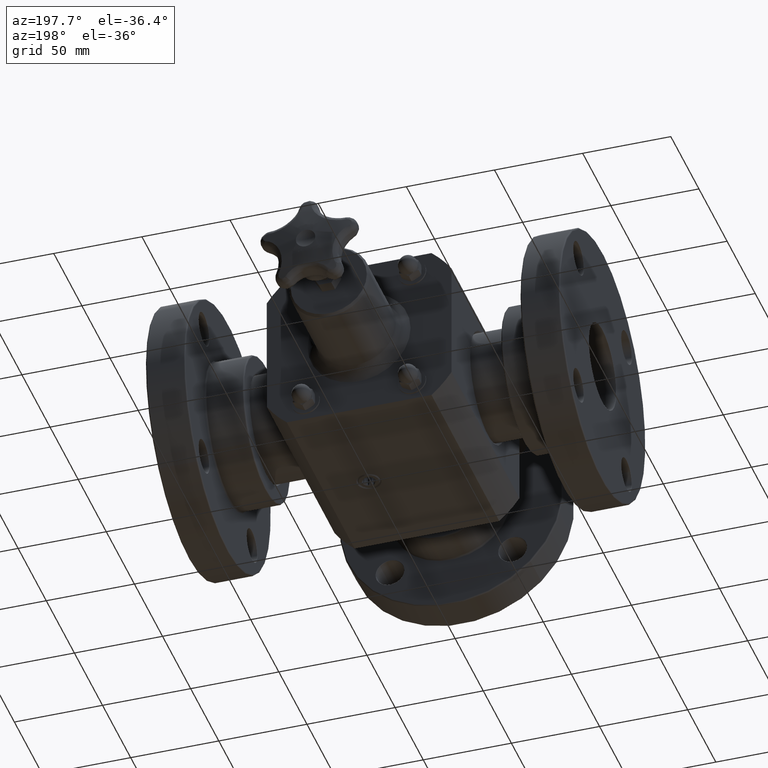
[diagram: clean part render]
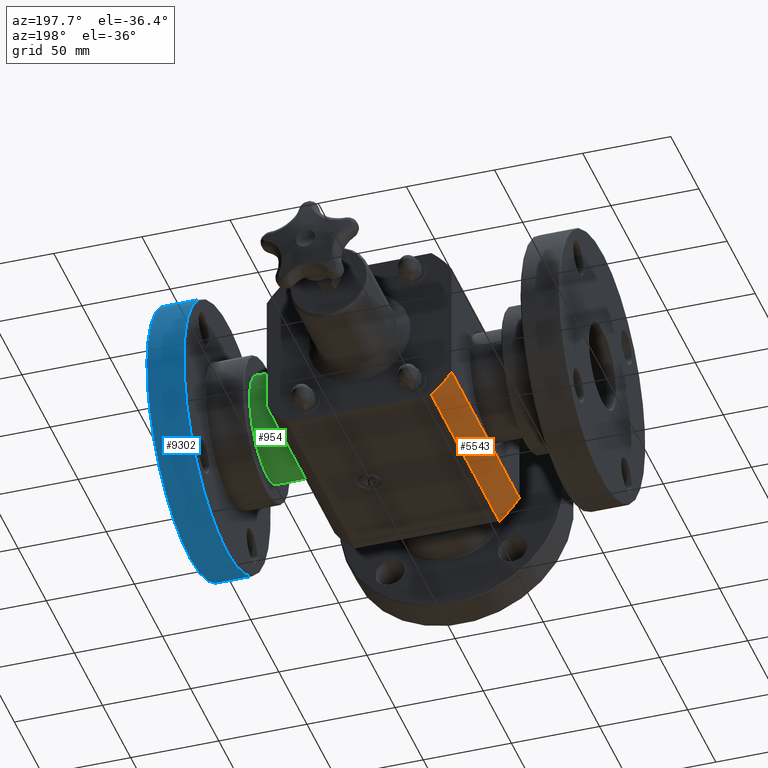
[diagram: same view with three faces highlighted in distinct colors, each labeled with its STEP entity id]
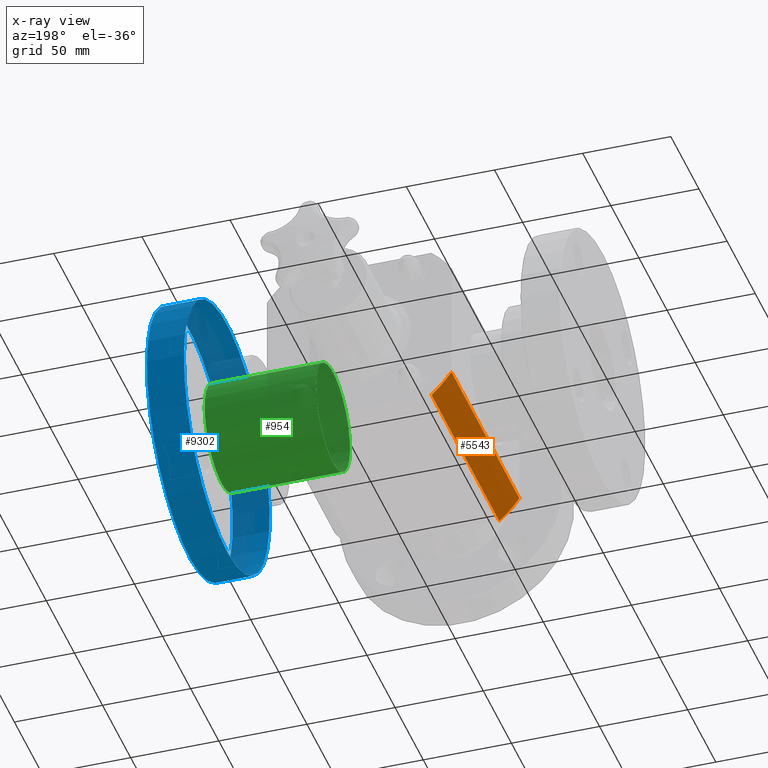
[diagram: x-ray of the same camera — body ghosted, the three highlighted faces saturated]
A machine part, auxiliary view with three faces highlighted in distinct colors.
The next image is the same camera in x-ray (body ghosted, the three faces saturated) — at least one of them is partly hidden behind the body in this view.
Their STEP definitions:

[orange] entity #5543 — the highlighted cylindrical surface (partial cylindrical patch) has radius 62.865 mm, axis along (-0, 1, 0).
#5028=CARTESIAN_POINT('',(-2.062500000000000,-6.381291E-016,-1.368107726021602));
#5029=VERTEX_POINT('',#5028);
#5036=CARTESIAN_POINT('',(-1.615549442140352,-2.694841E-016,-1.875000000000000));
#5037=VERTEX_POINT('',#5036);
#5038=CARTESIAN_POINT('',(0.0,0.0,0.0));
#5039=DIRECTION('',(0.0,1.0,0.0));
#5040=DIRECTION('',(1.0,0.0,0.0));
#5041=AXIS2_PLACEMENT_3D('',#5038,#5039,#5040);
#5042=CIRCLE('',#5041,2.475000000000000);
#5043=EDGE_CURVE('',#5037,#5029,#5042,.T.);
#5226=CARTESIAN_POINT('',(-1.615549442140356,4.749999999999999,-1.875000000000000));
#5227=VERTEX_POINT('',#5226);
#5228=CARTESIAN_POINT('',(-1.615549442140352,-2.694841E-016,-1.875000000000000));
#5229=DIRECTION('',(0.0,1.0,0.0));
#5230=VECTOR('',#5229,4.749999999999999);
#5231=LINE('',#5228,#5230);
#5232=EDGE_CURVE('',#5037,#5227,#5231,.T.);
#5291=CARTESIAN_POINT('',(-2.062500000000005,4.749999999999999,-1.368107726021602));
#5292=VERTEX_POINT('',#5291);
#5293=CARTESIAN_POINT('',(-2.062500000000000,-6.381291E-016,-1.368107726021602));
#5294=DIRECTION('',(0.0,1.0,0.0));
#5295=VECTOR('',#5294,4.750000000000000);
#5296=LINE('',#5293,#5295);
#5297=EDGE_CURVE('',#5029,#5292,#5296,.T.);
#5526=CARTESIAN_POINT('',(0.0,0.0,0.0));
#5527=DIRECTION('',(-4.996004E-016,1.0,2.867440E-016));
#5528=DIRECTION('',(1.0,0.0,0.0));
#5529=AXIS2_PLACEMENT_3D('',#5526,#5527,#5528);
#5530=CYLINDRICAL_SURFACE('',#5529,2.475000000000000);
#5531=ORIENTED_EDGE('',*,*,#5232,.F.);
#5532=ORIENTED_EDGE('',*,*,#5043,.T.);
#5533=ORIENTED_EDGE('',*,*,#5297,.T.);
#5534=CARTESIAN_POINT('',(-4.035678E-015,4.750000000000001,-2.622574E-016));
#5535=DIRECTION('',(0.0,-1.0,0.0));
#5536=DIRECTION('',(1.0,0.0,0.0));
#5537=AXIS2_PLACEMENT_3D('',#5534,#5535,#5536);
#5538=CIRCLE('',#5537,2.475000000000000);
#5539=EDGE_CURVE('',#5292,#5227,#5538,.T.);
#5540=ORIENTED_EDGE('',*,*,#5539,.T.);
#5541=EDGE_LOOP('',(#5531,#5532,#5533,#5540));
#5542=FACE_OUTER_BOUND('',#5541,.T.);
#5543=ADVANCED_FACE('',(#5542),#5530,.T.);

[blue] entity #9302 — the highlighted cylindrical surface (bore or boss wall) has radius 76.2 mm, axis along (-1, -0, -0).
#9268=CARTESIAN_POINT('',(3.769999999999999,4.319320343559645,-2.121320343559640));
#9269=VERTEX_POINT('',#9268);
#9270=CARTESIAN_POINT('',(3.770000000000000,2.198000000000001,1.028519E-015));
#9271=DIRECTION('',(-1.0,-9.300431E-017,9.300431E-017));
#9272=DIRECTION('',(1.315280E-016,-0.707106781186548,0.707106781186547));
#9273=AXIS2_PLACEMENT_3D('',#9270,#9271,#9272);
#9274=CIRCLE('',#9273,3.0);
#9275=EDGE_CURVE('',#9269,#9269,#9274,.T.);
#9283=CARTESIAN_POINT('',(4.182499999999999,2.198000000000001,1.079036E-015));
#9284=DIRECTION('',(-1.0,-3.084733E-016,-1.224647E-016));
#9285=DIRECTION('',(-1.315280E-016,0.707106781186548,-0.707106781186547));
#9286=AXIS2_PLACEMENT_3D('',#9283,#9284,#9285);
#9287=CYLINDRICAL_SURFACE('',#9286,3.0);
#9288=CARTESIAN_POINT('',(4.594999999999999,4.319320343559645,-2.121320343559640));
#9289=VERTEX_POINT('',#9288);
#9290=CARTESIAN_POINT('',(4.595000000000000,2.198000000000001,1.129552E-015));
#9291=DIRECTION('',(1.0,9.300431E-017,-9.300431E-017));
#9292=DIRECTION('',(1.315280E-016,-0.707106781186548,0.707106781186547));
#9293=AXIS2_PLACEMENT_3D('',#9290,#9291,#9292);
#9294=CIRCLE('',#9293,3.0);
#9295=EDGE_CURVE('',#9289,#9289,#9294,.T.);
#9296=ORIENTED_EDGE('',*,*,#9295,.F.);
#9297=EDGE_LOOP('',(#9296));
#9298=FACE_OUTER_BOUND('',#9297,.T.);
#9299=ORIENTED_EDGE('',*,*,#9275,.F.);
#9300=EDGE_LOOP('',(#9299));
#9301=FACE_BOUND('',#9300,.T.);
#9302=ADVANCED_FACE('',(#9298,#9301),#9287,.T.);

[green] entity #954 — the highlighted cylindrical surface (bore or boss wall) has radius 30.1625 mm, axis along (-1, -0, -0).
#927=CARTESIAN_POINT('',(2.145000000000000,2.198000000000000,8.295137E-016));
#928=DIRECTION('',(-1.0,-3.084733E-016,-1.224647E-016));
#929=DIRECTION('',(-1.406678E-016,0.059718865235483,0.998215235876004));
#930=AXIS2_PLACEMENT_3D('',#927,#928,#929);
#931=CYLINDRICAL_SURFACE('',#930,1.187500000000000);
#932=CARTESIAN_POINT('',(3.886666666666697,2.127083847532865,-1.185380592602754));
#933=VERTEX_POINT('',#932);
#934=CARTESIAN_POINT('',(3.886666666666697,2.198000000000001,1.042806E-015));
#935=DIRECTION('',(1.0,8.400520E-018,1.404167E-016));
#936=DIRECTION('',(-1.406678E-016,0.059718865235483,0.998215235876004));
#937=AXIS2_PLACEMENT_3D('',#934,#935,#936);
#938=CIRCLE('',#937,1.187500000000000);
#939=EDGE_CURVE('',#933,#933,#938,.T.);
#940=ORIENTED_EDGE('',*,*,#939,.F.);
#941=EDGE_LOOP('',(#940));
#942=FACE_OUTER_BOUND('',#941,.T.);
#943=CARTESIAN_POINT('',(1.395833333333277,2.127083847532864,-1.185380592602754));
#944=VERTEX_POINT('',#943);
#945=CARTESIAN_POINT('',(1.395833333333277,2.198000000000000,7.377673E-016));
#946=DIRECTION('',(-1.0,-8.400520E-018,-1.404167E-016));
#947=DIRECTION('',(-1.406678E-016,0.059718865235483,0.998215235876004));
#948=AXIS2_PLACEMENT_3D('',#945,#946,#947);
#949=CIRCLE('',#948,1.187500000000000);
#950=EDGE_CURVE('',#944,#944,#949,.T.);
#951=ORIENTED_EDGE('',*,*,#950,.F.);
#952=EDGE_LOOP('',(#951));
#953=FACE_BOUND('',#952,.T.);
#954=ADVANCED_FACE('',(#942,#953),#931,.T.);